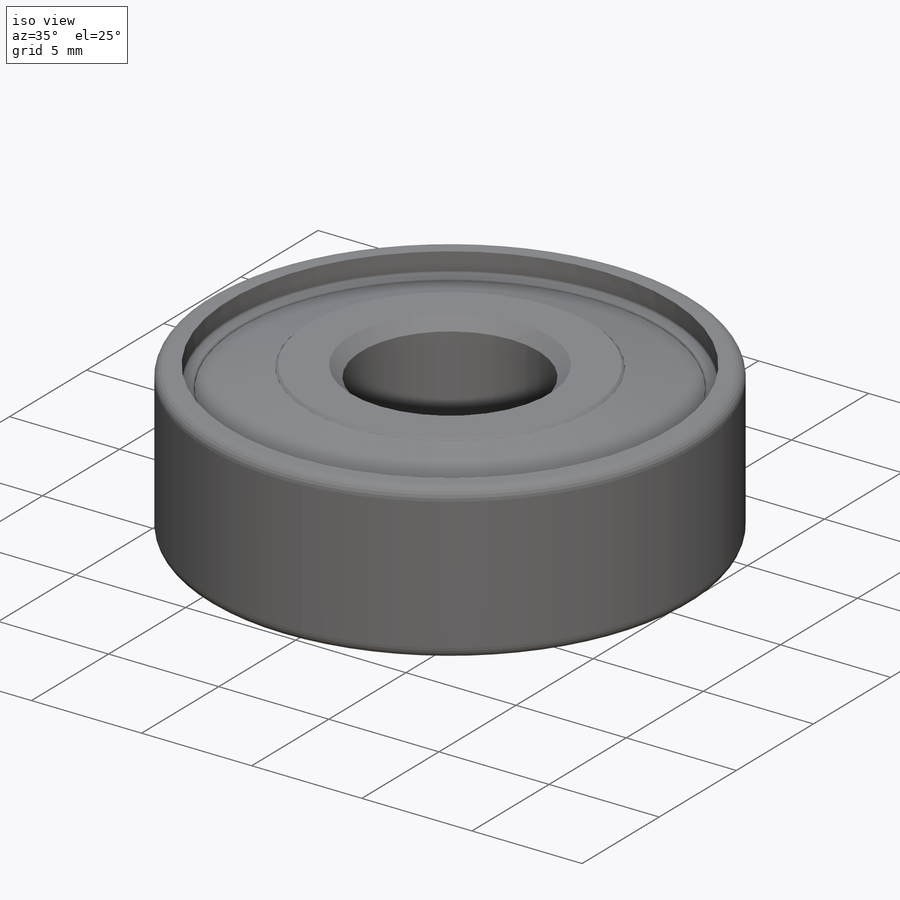
[diagram: iso view]
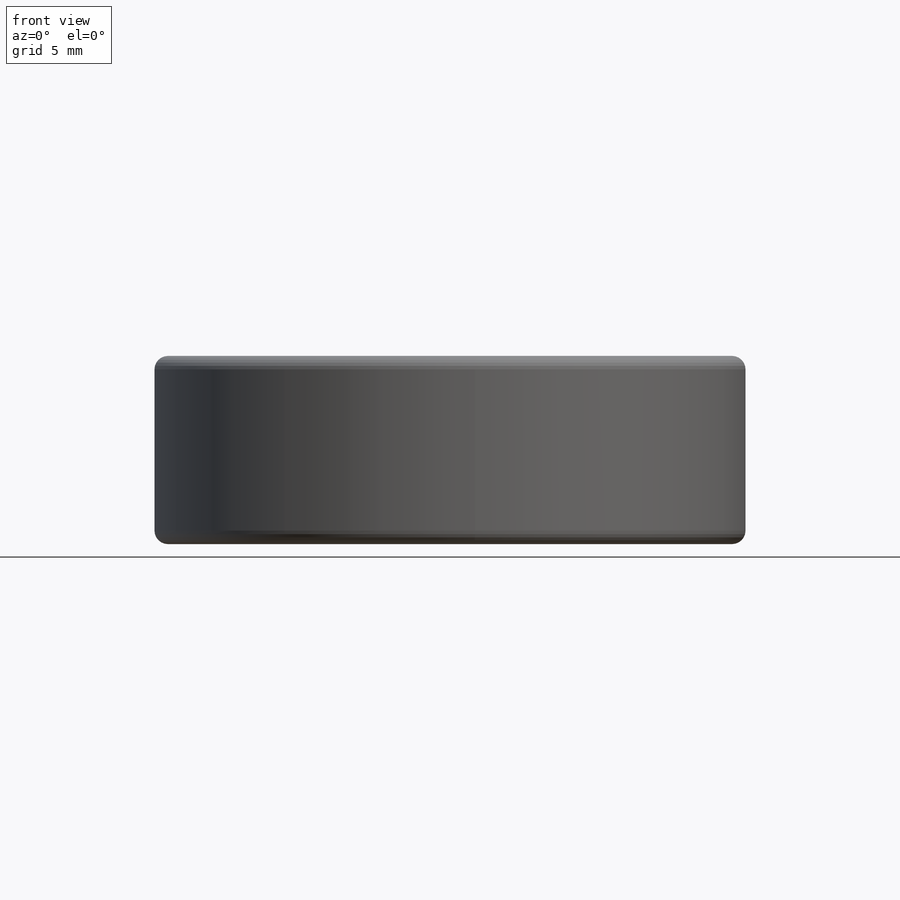
[diagram: front view]
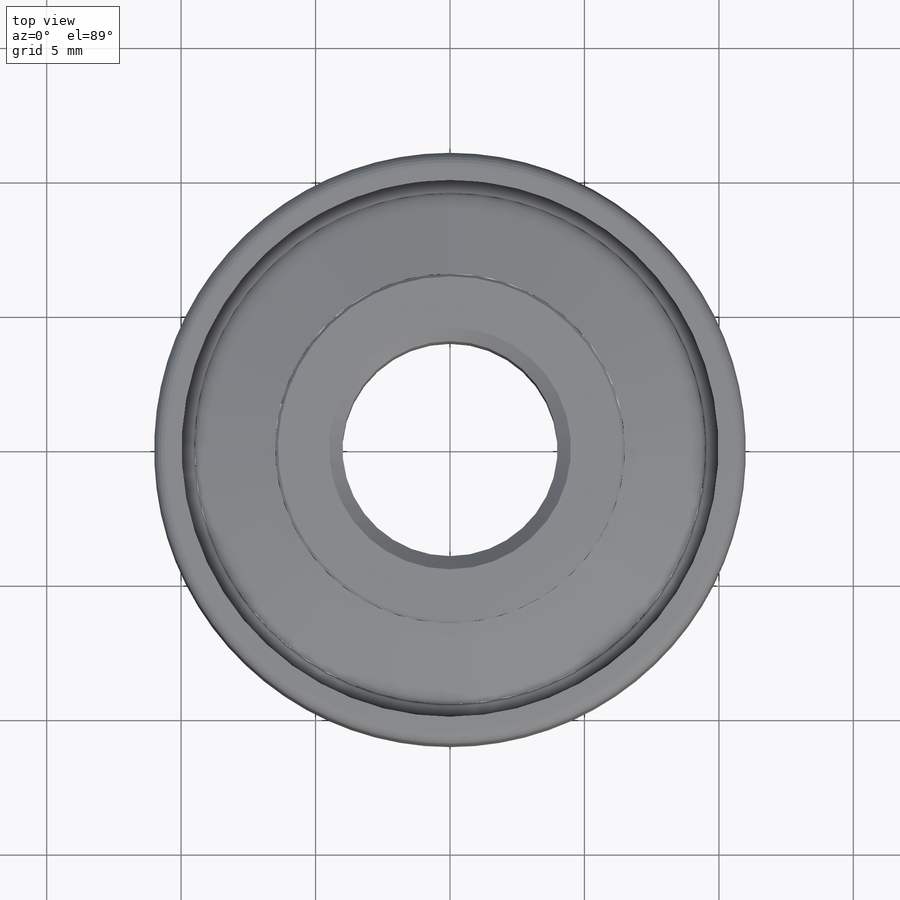
[diagram: top view]
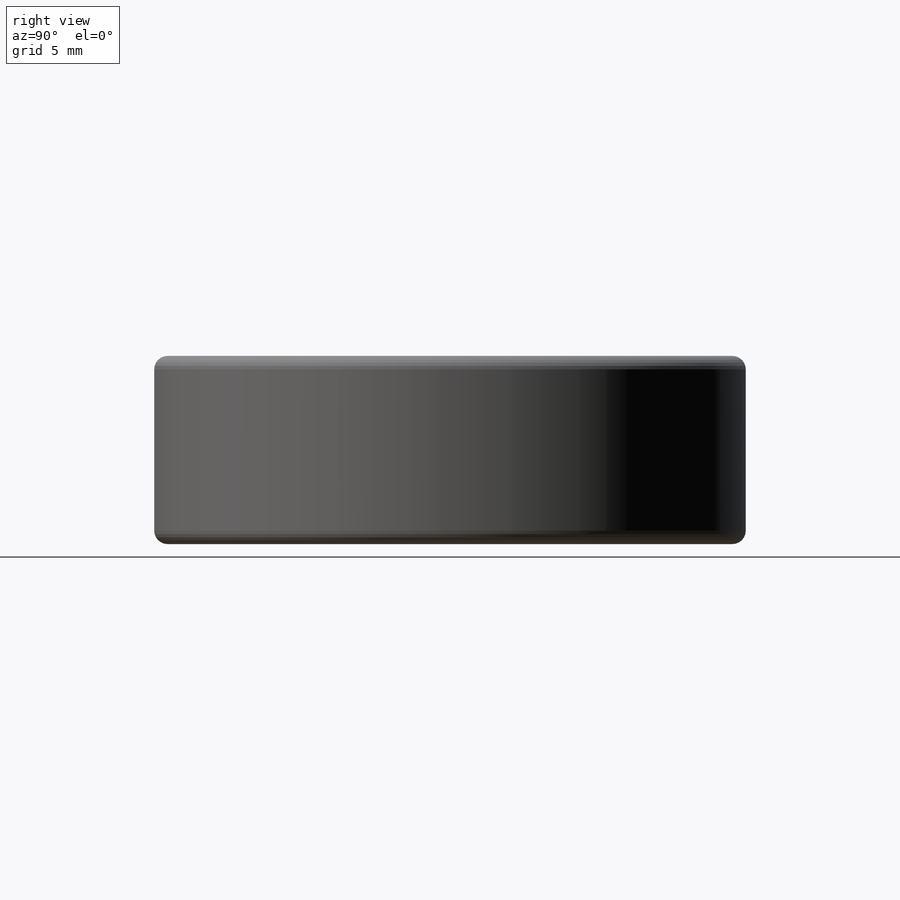
[diagram: right view]
SOLIDWORKS PART (.sldprt)
format: sldprt  version: not decoded by parser v0  size: 504,320 bytes
history: native  units: mm
features: sketch x5, revolve x2, fillet x2, chamfer x2, cut_extrude x2, pattern_circular x2, material x1 (+11 scaffold rows collapsed)
feature tree (27):
  scaffold x11  (default folders/planes/origin — collapsed)
  material  "Alloy Steel"
  sketch  "Sketch1"  dims[D1=4.5mm D2=6.5mm]
  sketch  "Sketch3"  dims[D1=4.0mm]
  revolve  "Revolve1"  Angle=360deg
  sketch  "Sketch6"
  fillet  "Fillet2"  Radius=0.1mm
  fillet  "Fillet5"  Radius=0.5mm
  chamfer  "Chamfer1"  Distance=0.5mm Angle=45deg
  chamfer  "Chamfer2"  Distance=0.1mm Angle=45deg
  sketch  "Sketch10"  dims[D1=0.6mm D2=0.6mm]
  cut_extrude  "Cut-Extrude3"  [1 undecoded]
  sketch  "Sketch12"
  cut_extrude  "Cut-Extrude4"  [1 undecoded]
  revolve  "Revolve7"  Angle=360deg
  pattern_circular  "CirPattern2"  Count=7 Angle=360deg
  pattern_circular  "Surface-Loft3"  [2 undecoded]
decode coverage: 10 of 15 modeling features carry decoded parameters
note: 4 parameter values undecoded
note: suppression state not decoded; provenance and decode notes live in map.json
